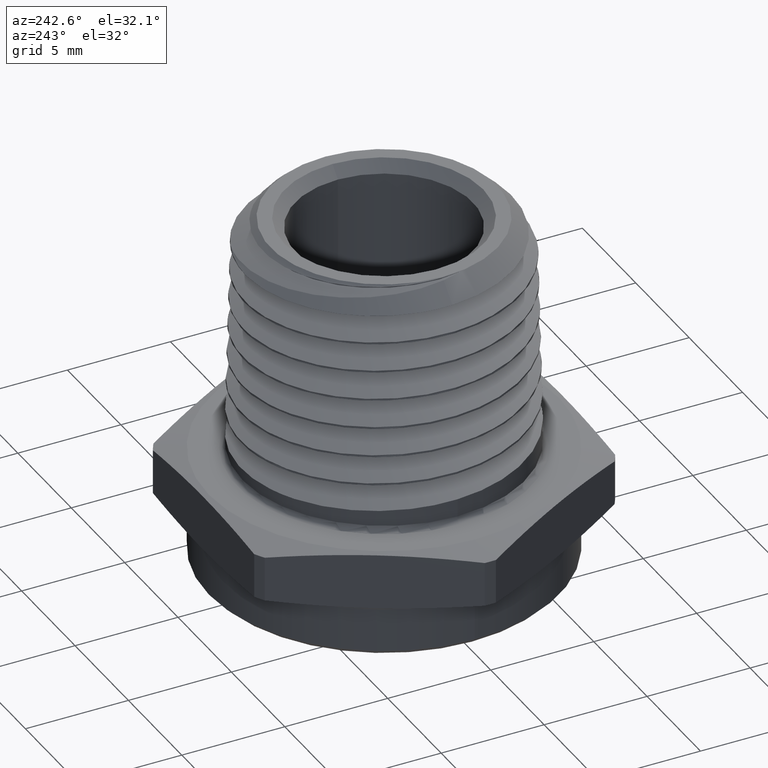
[diagram: clean part render]
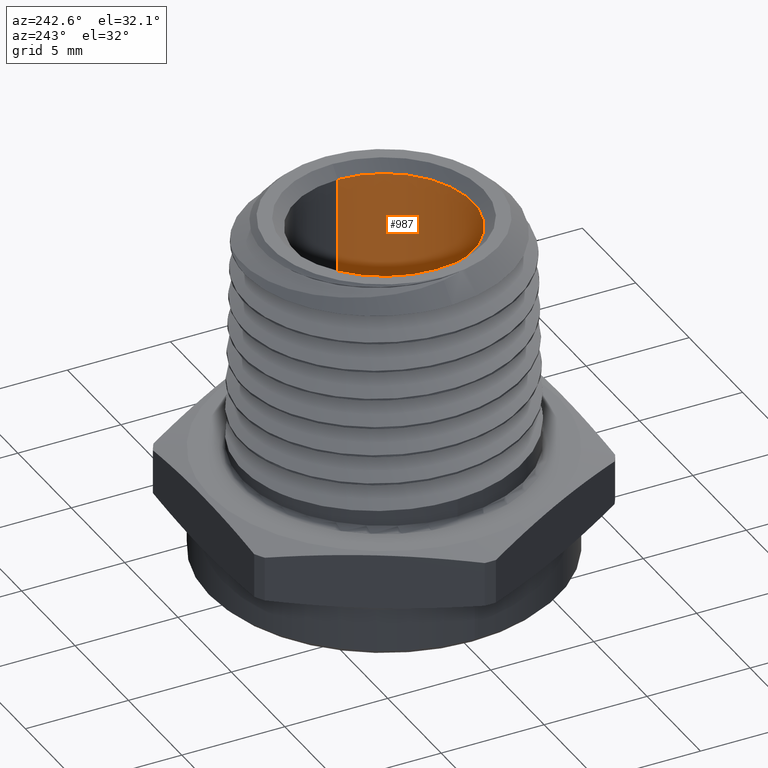
[diagram: same view with one face highlighted and labeled with its STEP entity id]
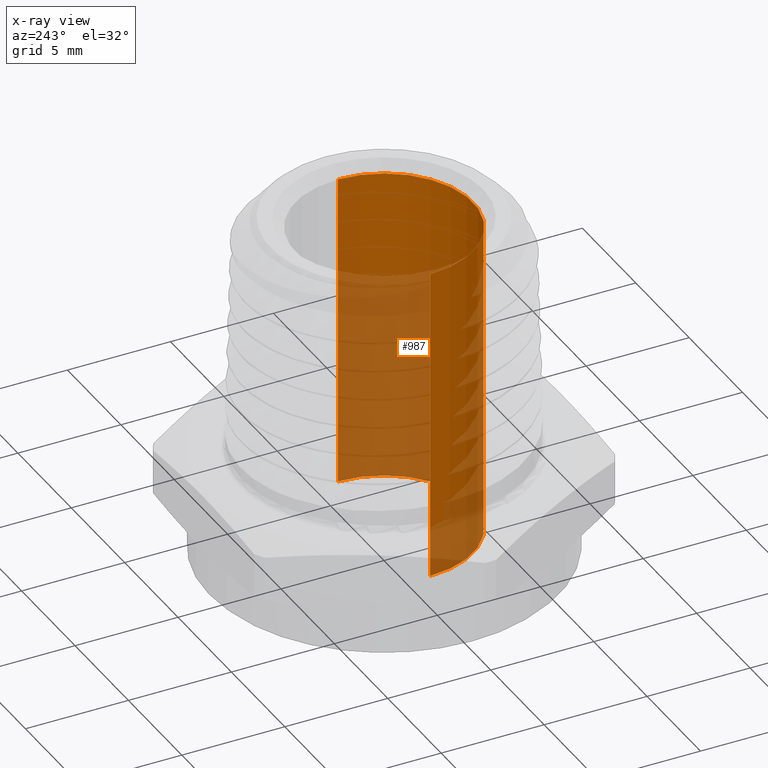
[diagram: x-ray of the same camera — body ghosted, the highlighted face saturated]
A machine part, auxiliary view. The second image highlights one B-rep face of the part: STEP entity #987.
The next image is the same camera in x-ray: the body ghosted, the highlighted face saturated — about 52% of this face is hidden behind the body in this view.
In plain terms, the highlighted cylindrical surface (partial cylindrical patch) has radius 4.318 mm, axis along (-0, -0, -1).
Its self-contained STEP definition (entity closure, byte-faithful):
#645 = CARTESIAN_POINT ( 'NONE',  ( -0.1699999999999999300, 0.0000000000000000000, 0.5500000000000000400 ) ) ;
#650 = CARTESIAN_POINT ( 'NONE',  ( -0.1699999999999999600, 0.0000000000000000000, -0.05500000000000001400 ) ) ;
#652 = CARTESIAN_POINT ( 'NONE',  ( 0.1699999999999999600, 2.081899558550499800E-017, -0.05500000000000004200 ) ) ;
#987 = ADVANCED_FACE ( 'NONE', ( #2126 ), #2125, .F. ) ;
#1385 = VERTEX_POINT ( 'NONE', #650 ) ;
#1386 = VERTEX_POINT ( 'NONE', #645 ) ;
#1389 = VERTEX_POINT ( 'NONE', #652 ) ;
#1433 = EDGE_CURVE ( 'NONE', #1455, #1389, #2217, .T. ) ;
#1434 = EDGE_CURVE ( 'NONE', #1386, #1385, #2218, .T. ) ;
#1455 = VERTEX_POINT ( 'NONE', #4052 ) ;
#1560 = ORIENTED_EDGE ( 'NONE', *, *, #1757, .F. ) ;
#1561 = ORIENTED_EDGE ( 'NONE', *, *, #1433, .T. ) ;
#1562 = ORIENTED_EDGE ( 'NONE', *, *, #1749, .T. ) ;
#1563 = ORIENTED_EDGE ( 'NONE', *, *, #1434, .F. ) ;
#1635 = EDGE_LOOP ( 'NONE', ( #1560, #1561, #1562, #1563 ) ) ;
#1749 = EDGE_CURVE ( 'NONE', #1389, #1385, #4721, .T. ) ;
#1757 = EDGE_CURVE ( 'NONE', #1455, #1386, #4728, .T. ) ;
#1794 = AXIS2_PLACEMENT_3D ( 'NONE', #1868, #1869, #1867 ) ;
#1867 = DIRECTION ( 'NONE',  ( -1.000000000000000000, 0.0000000000000000000, 1.004355880023626400E-016 ) ) ;
#1868 = CARTESIAN_POINT ( 'NONE',  ( -1.224646799147327800E-018, 0.0000000000000000000, -0.1000000000000000100 ) ) ;
#1869 = DIRECTION ( 'NONE',  ( -1.241027080502703100E-016, -0.0000000000000000000, -1.000000000000000000 ) ) ;
#2125 = CYLINDRICAL_SURFACE ( 'NONE', #1794, 0.1699999999999999600 ) ;
#2126 = FACE_OUTER_BOUND ( 'NONE', #1635, .T. ) ;
#2217 = LINE ( 'NONE', #3955, #2221 ) ;
#2218 = LINE ( 'NONE', #3956, #2223 ) ;
#2221 = VECTOR ( 'NONE', #3961, 39.37007874015748100 ) ;
#2223 = VECTOR ( 'NONE', #3962, 39.37007874015748100 ) ;
#2330 = AXIS2_PLACEMENT_3D ( 'NONE', #5396, #5397, #5398 ) ;
#3955 = CARTESIAN_POINT ( 'NONE',  ( 0.1699999999999999600, 2.081899558550499800E-017, -0.1000000000000000200 ) ) ;
#3956 = CARTESIAN_POINT ( 'NONE',  ( -0.1699999999999999600, 0.0000000000000000000, -0.09999999999999999200 ) ) ;
#3961 = DIRECTION ( 'NONE',  ( -1.241027080502703100E-016, -0.0000000000000000000, -1.000000000000000000 ) ) ;
#3962 = DIRECTION ( 'NONE',  ( -1.241027080502703100E-016, -0.0000000000000000000, -1.000000000000000000 ) ) ;
#4052 = CARTESIAN_POINT ( 'NONE',  ( 0.1700000000000000700, 2.081899558550500800E-017, 0.5500000000000000400 ) ) ;
#4721 = CIRCLE ( 'NONE', #2330, 0.1699999999999999600 ) ;
#4728 = CIRCLE ( 'NONE', #5487, 0.1699999999999999800 ) ;
#5396 = CARTESIAN_POINT ( 'NONE',  ( 4.359975063114834100E-018, 0.0000000000000000000, -0.05500000000000002800 ) ) ;
#5397 = DIRECTION ( 'NONE',  ( -1.241027080502703100E-016, -0.0000000000000000000, -1.000000000000000000 ) ) ;
#5398 = DIRECTION ( 'NONE',  ( -1.000000000000000000, 0.0000000000000000000, 1.004355880023626400E-016 ) ) ;
#5423 = CARTESIAN_POINT ( 'NONE',  ( 7.944211343352838500E-017, 0.0000000000000000000, 0.5500000000000000400 ) ) ;
#5424 = DIRECTION ( 'NONE',  ( -1.241027080502703100E-016, -0.0000000000000000000, -1.000000000000000000 ) ) ;
#5425 = DIRECTION ( 'NONE',  ( -1.000000000000000000, 0.0000000000000000000, 0.0000000000000000000 ) ) ;
#5487 = AXIS2_PLACEMENT_3D ( 'NONE', #5423, #5424, #5425 ) ;